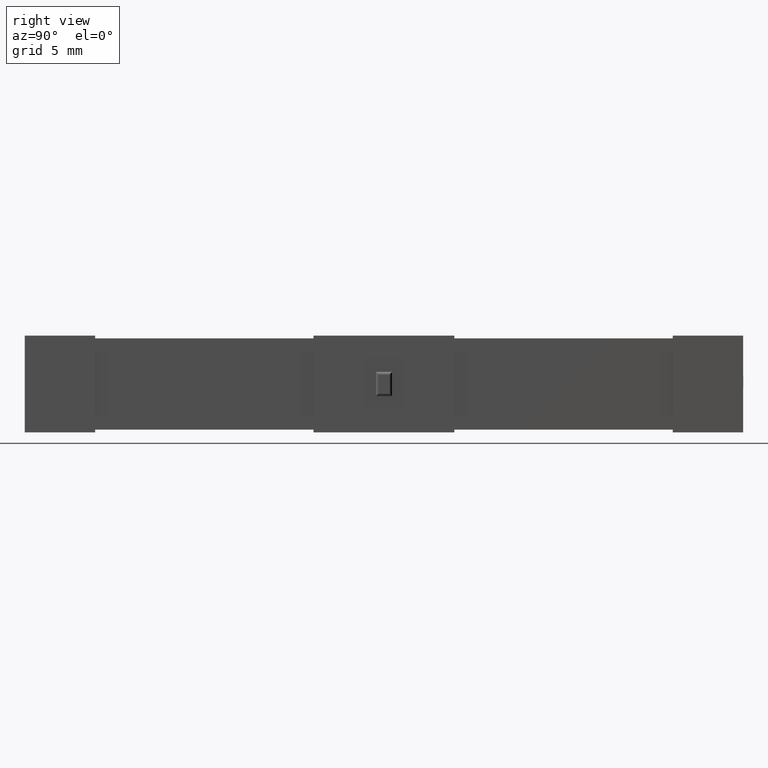
[diagram: clean part render]
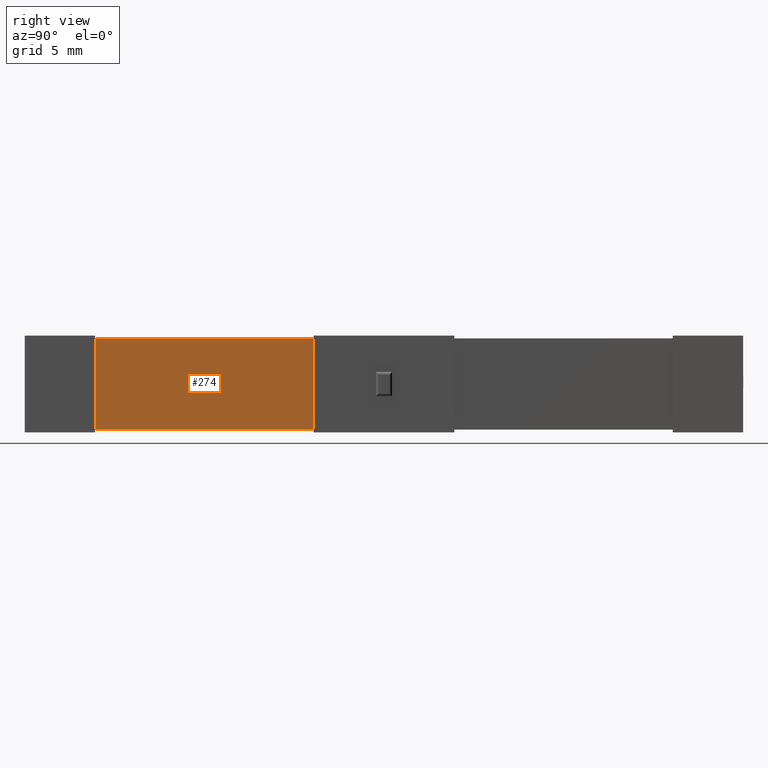
[diagram: same view with one face highlighted and labeled with its STEP entity id]
A machine part, right view. The second image highlights one B-rep face of the part: STEP entity #274.
In plain terms, the highlighted planar face has unit normal (1, 0, 0).
Its self-contained STEP definition (entity closure, byte-faithful):
#64 = VECTOR ( 'NONE', #1027, 1000.000000000000000 ) ;
#84 = CARTESIAN_POINT ( 'NONE',  ( 4.999999999999999112, 3.929799999999999738, 0.1500000000000002998 ) ) ;
#102 = EDGE_CURVE ( 'NONE', #894, #2431, #1322, .T. ) ;
#111 = VERTEX_POINT ( 'NONE', #2349 ) ;
#121 = CARTESIAN_POINT ( 'NONE',  ( 4.999999999999999112, 16.12020000000000053, 5.250000000000001776 ) ) ;
#230 = FACE_OUTER_BOUND ( 'NONE', #2456, .T. ) ;
#274 = ADVANCED_FACE ( 'NONE', ( #230 ), #2031, .T. ) ;
#303 = VECTOR ( 'NONE', #2964, 1000.000000000000000 ) ;
#454 = CARTESIAN_POINT ( 'NONE',  ( 4.999999999999999112, 16.12020000000000053, 0.1500000000000000777 ) ) ;
#460 = EDGE_CURVE ( 'NONE', #1923, #894, #1346, .T. ) ;
#738 = VECTOR ( 'NONE', #2842, 1000.000000000000000 ) ;
#894 = VERTEX_POINT ( 'NONE', #84 ) ;
#1027 = DIRECTION ( 'NONE',  ( -0.000000000000000000, 1.000000000000000000, 1.222911460795026316E-16 ) ) ;
#1037 = ORIENTED_EDGE ( 'NONE', *, *, #1931, .T. ) ;
#1098 = CARTESIAN_POINT ( 'NONE',  ( 4.999999999999999112, 3.929799999999999738, 5.250000000000000888 ) ) ;
#1174 = ORIENTED_EDGE ( 'NONE', *, *, #1749, .T. ) ;
#1274 = CARTESIAN_POINT ( 'NONE',  ( 4.999999999999999112, 16.12020000000000053, 5.250000000000001776 ) ) ;
#1279 = DIRECTION ( 'NONE',  ( 0.000000000000000000, 0.000000000000000000, -1.000000000000000000 ) ) ;
#1322 = LINE ( 'NONE', #1836, #64 ) ;
#1346 = LINE ( 'NONE', #1098, #2827 ) ;
#1749 = EDGE_CURVE ( 'NONE', #2431, #111, #1917, .T. ) ;
#1836 = CARTESIAN_POINT ( 'NONE',  ( 4.999999999999999112, 16.12020000000000053, 0.1500000000000000777 ) ) ;
#1917 = LINE ( 'NONE', #121, #303 ) ;
#1923 = VERTEX_POINT ( 'NONE', #2385 ) ;
#1931 = EDGE_CURVE ( 'NONE', #111, #1923, #2908, .T. ) ;
#1950 = ORIENTED_EDGE ( 'NONE', *, *, #460, .T. ) ;
#1980 = CARTESIAN_POINT ( 'NONE',  ( 4.999999999999999112, 0.000000000000000000, 0.000000000000000000 ) ) ;
#2031 = PLANE ( 'NONE',  #2399 ) ;
#2349 = CARTESIAN_POINT ( 'NONE',  ( 4.999999999999999112, 16.12020000000000053, 5.250000000000001776 ) ) ;
#2376 = DIRECTION ( 'NONE',  ( 0.000000000000000000, 0.000000000000000000, -1.000000000000000000 ) ) ;
#2385 = CARTESIAN_POINT ( 'NONE',  ( 4.999999999999999112, 3.929799999999999738, 5.250000000000000888 ) ) ;
#2399 = AXIS2_PLACEMENT_3D ( 'NONE', #1980, #3017, #1279 ) ;
#2431 = VERTEX_POINT ( 'NONE', #454 ) ;
#2456 = EDGE_LOOP ( 'NONE', ( #1037, #1950, #3212, #1174 ) ) ;
#2827 = VECTOR ( 'NONE', #2376, 1000.000000000000000 ) ;
#2842 = DIRECTION ( 'NONE',  ( 0.000000000000000000, -1.000000000000000000, -7.115121226443788624E-17 ) ) ;
#2908 = LINE ( 'NONE', #1274, #738 ) ;
#2964 = DIRECTION ( 'NONE',  ( -0.000000000000000000, -0.000000000000000000, 1.000000000000000000 ) ) ;
#3017 = DIRECTION ( 'NONE',  ( 1.000000000000000000, 0.000000000000000000, 0.000000000000000000 ) ) ;
#3212 = ORIENTED_EDGE ( 'NONE', *, *, #102, .T. ) ;